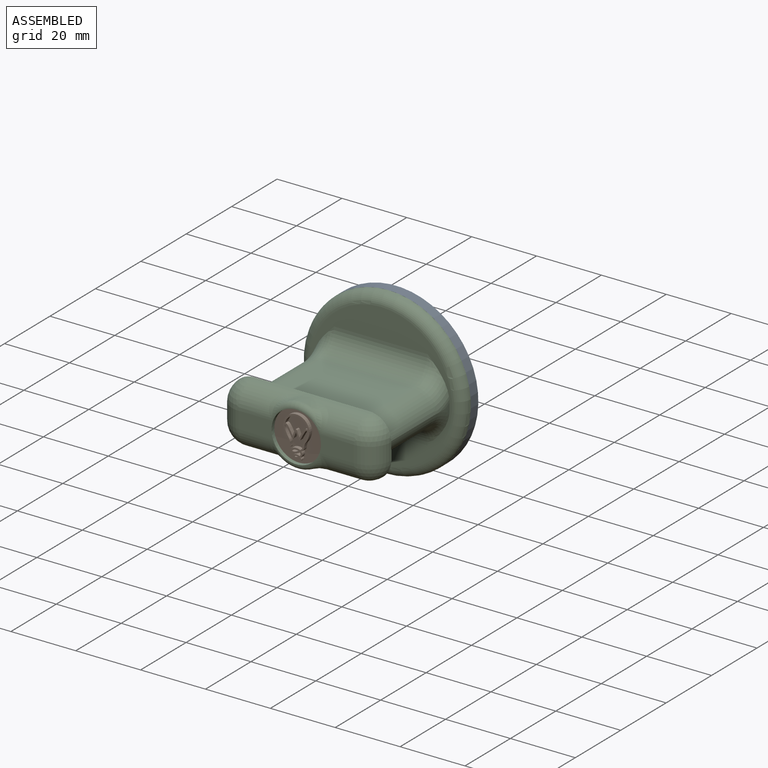
[diagram: assembled view]
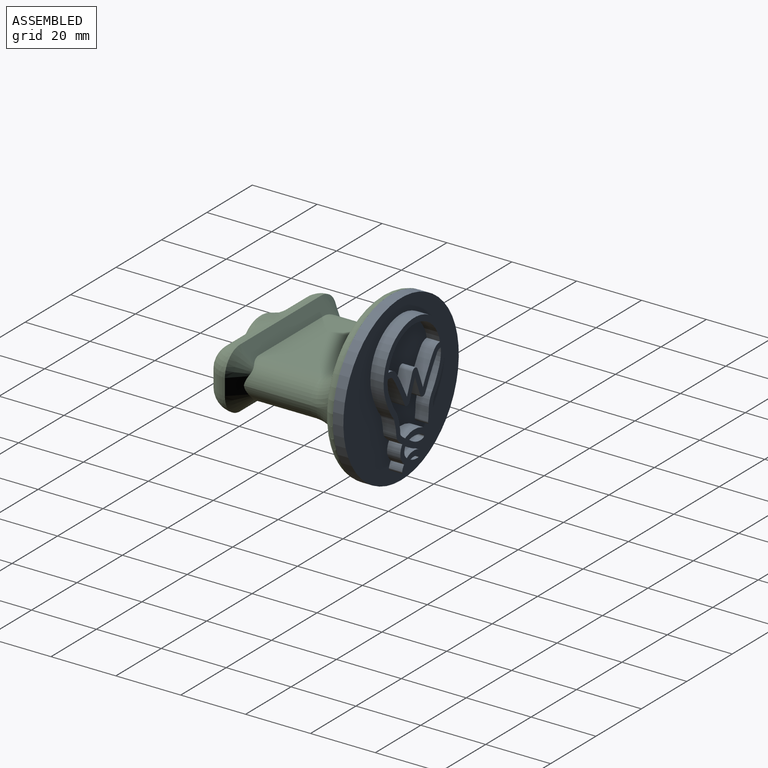
[diagram: assembled view, second angle]
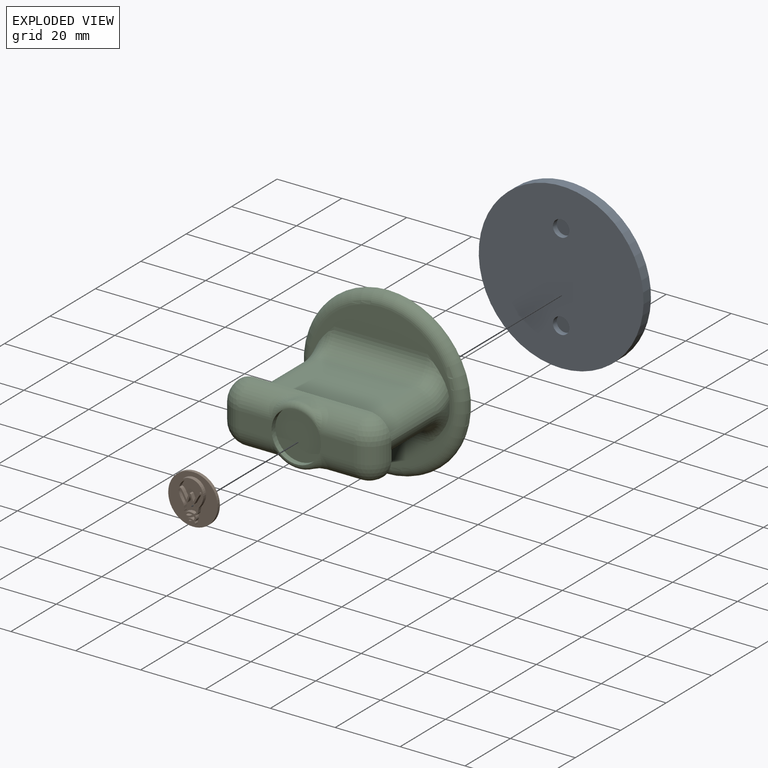
[diagram: exploded view]
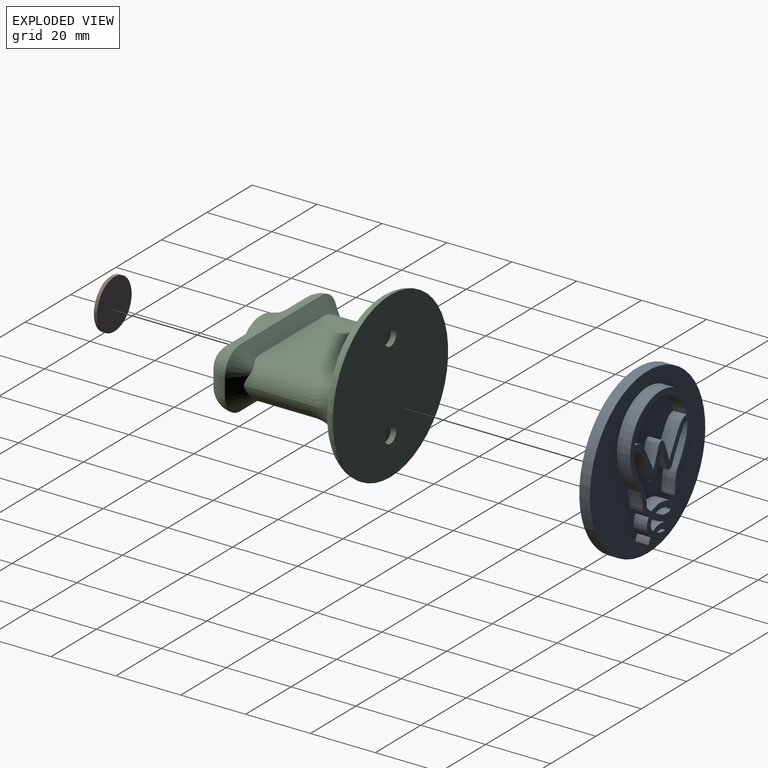
[diagram: exploded view, second angle]
ASSEMBLY  parts=3 mates=3
PART A: 128 faces, bbox 50.8x7.3x50.8 mm
  f0: cylinder r=196.46mm len=5.96mm, axis (0,1,0), area 26.2mm2, adj f1,f116,f117,f118
  f1: cylinder r=1.22mm len=4.08mm, axis (0,1,0), area 12mm2, adj f0,f2,f117,f118
  f2: cylinder r=205.59mm len=5.96mm, axis (0,1,0), area 26.1mm2, adj f1,f3,f117,f118
  f3: cylinder r=60.74mm len=5.03mm, axis (0,1,0), area 23.4mm2, adj f2,f4,f117,f118
  f4: cylinder r=17.63mm len=4.08mm, axis (0,1,0), area 17.1mm2, adj f3,f5,f117,f118
  f5: cylinder r=3.38mm len=4.08mm, axis (0,1,0), area 12mm2, adj f4,f6,f117,f118
  f6: cylinder r=11.6mm len=22.71mm, axis (0,1,0), area 129.3mm2, adj f5,f7,f117,f118
  f7: cylinder r=3.99mm len=4.08mm, axis (0,1,0), area 9.7mm2, adj f6,f8,f117,f118
  f8: cylinder r=3.51mm len=4.08mm, axis (0,1,0), area 7.5mm2, adj f7,f9,f117,f118
  f9: cylinder r=22.64mm len=4.08mm, axis (0,1,0), area 15.6mm2, adj f8,f116,f117,f118
  f10: cylinder r=4.15mm len=4.08mm, axis (0,1,0), area 3.8mm2, adj f11,f113,f117,f121
  f11: cylinder r=19.59mm len=4.08mm, axis (0,1,0), area 3.9mm2, adj f10,f12,f117,f121
  f12: cylinder r=4.32mm len=4.08mm, axis (0,1,0), area 4.9mm2, adj f11,f13,f117,f121
  f13: cylinder r=6.24mm len=4.08mm, axis (0,1,0), area 8.6mm2, adj f12,f14,f117,f121
  f14: cylinder r=3.53mm len=4.08mm, axis (0,1,0), area 7.7mm2, adj f13,f15,f117,f121
  f15: cylinder r=2.2mm len=4.08mm, axis (0,1,0), area 5.5mm2, adj f14,f16,f117,f121
  f16: cylinder r=2.23mm len=4.08mm, axis (0,1,0), area 3.6mm2, adj f15,f17,f117,f121
  f17: cylinder r=1.21mm len=4.08mm, axis (0,1,0), area 4.5mm2, adj f16,f18,f117,f121
  f18: cylinder r=1.99mm len=4.08mm, axis (0,1,0), area 5.9mm2, adj f17,f19,f117,f121
  f19: cylinder r=5.77mm len=4.08mm, axis (0,1,0), area 8.8mm2, adj f18,f20,f117,f121
  f20: cylinder r=5.63mm len=4.08mm, axis (0,1,0), area 6.2mm2, adj f19,f21,f117,f121
  f21: cylinder r=5.17mm len=4.08mm, axis (0,1,0), area 6.7mm2, adj f20,f22,f117,f121
  f22: cylinder r=22.22mm len=4.08mm, axis (0,1,0), area 5.8mm2, adj f21,f23,f117,f121
  f23: cylinder r=0.85mm len=4.08mm, axis (0,1,0), area 8.8mm2, adj f22,f24,f117,f121
  f24: cylinder r=4.37mm len=4.08mm, axis (0,1,0), area 8.2mm2, adj f23,f25,f117,f121
  f25: cylinder r=3.71mm len=4.08mm, axis (0,1,0), area 5.8mm2, adj f24,f26,f117,f121
  f26: cylinder r=3.82mm len=4.08mm, axis (0,1,0), area 4mm2, adj f25,f27,f117,f121
  f27: cylinder r=1.83mm len=4.08mm, axis (0,1,0), area 4mm2, adj f26,f28,f117,f121
  f28: cylinder r=3.59mm len=4.08mm, axis (0,1,0), area 6.4mm2, adj f27,f29,f117,f121
  f29: cylinder r=2.82mm len=4.08mm, axis (0,1,0), area 4.2mm2, adj f28,f30,f117,f121
  f30: cylinder r=1.76mm len=4.08mm, axis (0,1,0), area 2.5mm2, adj f29,f31,f117,f121
  f31: cylinder r=9.08mm len=4.08mm, axis (0,1,0), area 10.6mm2, adj f30,f32,f117,f121
  f32: cylinder r=1.67mm len=4.08mm, axis (0,1,0), area 4mm2, adj f31,f33,f117,f121
  f33: cylinder r=3.78mm len=4.08mm, axis (0,1,0), area 6.6mm2, adj f32,f34,f117,f121
  f34: cylinder r=15.09mm len=4.08mm, axis (0,1,0), area 14.1mm2, adj f33,f35,f117,f121
  f35: cylinder r=3.51mm len=4.08mm, axis (0,1,0), area 9.5mm2, adj f34,f36,f117,f121
  f36: cylinder r=21.47mm len=4.08mm, axis (0,1,0), area 15.5mm2, adj f35,f37,f117,f121
  f37: cylinder r=19.36mm len=4.08mm, axis (0,1,0), area 11.9mm2, adj f36,f38,f117,f121
  f38: cylinder r=13.67mm len=4.08mm, axis (0,1,0), area 12mm2, adj f37,f39,f117,f121
  f39: cylinder r=13.49mm len=26.99mm, axis (0,1,0), area 185mm2, adj f38,f40,f117,f121
  f40: cylinder r=13.8mm len=4.08mm, axis (0,1,0), area 15.3mm2, adj f39,f41,f117,f121
  f41: cylinder r=16.01mm len=4.08mm, axis (0,1,0), area 15.8mm2, adj f40,f42,f117,f121
  f42: cylinder r=31.2mm len=4.08mm, axis (0,1,0), area 8.6mm2, adj f41,f43,f117,f121
  f43: cylinder r=2.15mm len=4.08mm, axis (0,1,0), area 3.4mm2, adj f42,f44,f117,f121
  f44: cylinder r=6.78mm len=4.08mm, axis (0,1,0), area 6.9mm2, adj f43,f45,f117,f121
  f45: cylinder r=4.59mm len=4.08mm, axis (0,1,0), area 8.4mm2, adj f44,f46,f117,f121
  f46: cylinder r=182.43mm len=4.08mm, axis (0,1,0), area 12.1mm2, adj f45,f47,f117,f121
  f47: cylinder r=3.56mm len=4.08mm, axis (0,1,0), area 2.8mm2, adj f46,f48,f117,f121
  f48: cylinder r=0.84mm len=4.08mm, axis (0,1,0), area 10.3mm2, adj f47,f49,f117,f121
  f49: cylinder r=27.62mm len=4.08mm, axis (0,1,0), area 13.5mm2, adj f48,f50,f117,f121
  f50: cylinder r=5.45mm len=4.08mm, axis (0,1,0), area 7.3mm2, adj f49,f51,f117,f121
  f51: cylinder r=5.55mm len=4.08mm, axis (0,1,0), area 9mm2, adj f50,f52,f117,f121
  f52: cylinder r=4.51mm len=4.08mm, axis (0,1,0), area 4.5mm2, adj f51,f53,f117,f121
  f53: cylinder r=29.47mm len=5.43mm, axis (0,1,0), area 25mm2, adj f52,f54,f117,f121
  f54: cylinder r=10.37mm len=4.99mm, axis (0,1,0), area 20.8mm2, adj f53,f55,f117,f121
  f55: cylinder r=1.45mm len=4.08mm, axis (0,1,0), area 4.7mm2, adj f54,f56,f117,f121
  f56: cylinder r=2.53mm len=4.08mm, axis (0,1,0), area 3.6mm2, adj f55,f57,f117,f121
  f57: cylinder r=68.64mm len=8.42mm, axis (0,1,0), area 39.6mm2, adj f56,f58,f117,f121
  f58: cylinder r=5.14mm len=4.08mm, axis (0,1,0), area 2.9mm2, adj f57,f59,f117,f121
  f59: cylinder r=1.23mm len=4.08mm, axis (0,1,0), area 10.8mm2, adj f58,f60,f117,f121
  f60: cylinder r=654.76mm len=6mm, axis (0,1,0), area 26.3mm2, adj f59,f61,f117,f121
  f61: cylinder r=1255.05mm len=5.98mm, axis (0,1,0), area 26.3mm2, adj f60,f62,f117,f121
  f62: cylinder r=1.17mm len=4.08mm, axis (0,1,0), area 11mm2, adj f61,f63,f117,f121
  f63: cylinder r=61.3mm len=4.08mm, axis (0,1,0), area 6.7mm2, adj f62,f64,f117,f121
  f64: cylinder r=93.17mm len=5.57mm, axis (0,1,0), area 25.9mm2, adj f63,f65,f117,f121
  f65: cylinder r=25.24mm len=4.08mm, axis (0,1,0), area 11.1mm2, adj f64,f66,f117,f121
  f66: cylinder r=1.51mm len=4.08mm, axis (0,1,0), area 5.6mm2, adj f65,f67,f117,f121
  f67: cylinder r=5.9mm len=4.08mm, axis (0,1,0), area 4mm2, adj f66,f68,f117,f121
  f68: cylinder r=6.85mm len=4.08mm, axis (0,1,0), area 8.9mm2, adj f67,f69,f117,f121
  f69: cylinder r=8.07mm len=4.08mm, axis (0,1,0), area 10.3mm2, adj f68,f70,f117,f121
  f70: cylinder r=16.63mm len=4.08mm, axis (0,1,0), area 13mm2, adj f69,f71,f117,f121
  f71: cylinder r=18.72mm len=4.08mm, axis (0,1,0), area 15mm2, adj f70,f72,f117,f121
  f72: cylinder r=4.03mm len=4.08mm, axis (0,1,0), area 6.9mm2, adj f71,f73,f117,f121
  f73: cylinder r=15.83mm len=4.08mm, axis (0,1,0), area 12.3mm2, adj f72,f74,f117,f121
  f74: cylinder r=8.83mm len=4.08mm, axis (0,1,0), area 9.1mm2, adj f73,f75,f117,f121
  f75: cylinder r=1.27mm len=4.08mm, axis (0,1,0), area 3.3mm2, adj f74,f76,f117,f121
  f76: cylinder r=11.67mm len=4.08mm, axis (0,1,0), area 9.1mm2, adj f75,f77,f117,f121
  f77: cylinder r=3.49mm len=4.08mm, axis (0,1,0), area 5.7mm2, adj f76,f78,f117,f121
  f78: cylinder r=5.88mm len=4.08mm, axis (0,1,0), area 12.9mm2, adj f77,f79,f117,f121
  f79: cylinder r=5.38mm len=4.08mm, axis (0,1,0), area 9.2mm2, adj f78,f80,f117,f121
  f80: cylinder r=5.29mm len=4.08mm, axis (0,1,0), area 10.1mm2, adj f79,f81,f117,f121
  f81: cylinder r=2.38mm len=4.08mm, axis (0,1,0), area 6.9mm2, adj f80,f82,f117,f121
  f82: cylinder r=2.49mm len=4.08mm, axis (0,1,0), area 5mm2, adj f81,f83,f117,f121
  f83: cylinder r=1.51mm len=4.08mm, axis (0,1,0), area 5mm2, adj f82,f84,f117,f121
  f84: cylinder r=2.66mm len=4.08mm, axis (0,1,0), area 7.1mm2, adj f83,f85,f117,f121
  f85: cylinder r=10.03mm len=4.08mm, axis (0,1,0), area 7.6mm2, adj f84,f86,f117,f121
  f86: cylinder r=2.69mm len=4.08mm, axis (0,1,0), area 3.2mm2, adj f85,f87,f117,f121
  f87: cylinder r=5.31mm len=4.08mm, axis (0,1,0), area 4.4mm2, adj f86,f88,f117,f121
  f88: cylinder r=3.86mm len=4.08mm, axis (0,1,0), area 3.7mm2, adj f87,f89,f117,f121
  f89: cylinder r=12.93mm len=4.08mm, axis (0,1,0), area 7.2mm2, adj f88,f90,f117,f121
  f90: cylinder r=8.5mm len=4.08mm, axis (0,1,0), area 7.3mm2, adj f89,f91,f117,f121
  f91: cylinder r=1.95mm len=4.08mm, axis (0,1,0), area 3.5mm2, adj f90,f92,f117,f121
  f92: cylinder r=2.35mm len=4.08mm, axis (0,1,0), area 2.8mm2, adj f91,f93,f117,f121
  f93: cylinder r=2.72mm len=4.08mm, axis (0,1,0), area 3.2mm2, adj f92,f113,f117,f121
  f94: cylinder r=2.87mm len=4.08mm, axis (0,1,0), area 4.7mm2, adj f95,f114,f117,f120
  f95: cylinder r=13.21mm len=4.08mm, axis (0,1,0), area 8mm2, adj f94,f96,f117,f120
  f96: cylinder r=6.91mm len=4.08mm, axis (0,1,0), area 5.6mm2, adj f95,f97,f117,f120
  f97: cylinder r=4.27mm len=4.08mm, axis (0,1,0), area 6.3mm2, adj f96,f98,f117,f120
  f98: cylinder r=6.13mm len=4.08mm, axis (0,1,0), area 4.1mm2, adj f97,f99,f117,f120
  f99: cylinder r=1.64mm len=4.08mm, axis (0,1,0), area 2.6mm2, adj f98,f100,f117,f120
  f100: cylinder r=0.79mm len=4.08mm, axis (0,1,0), area 2mm2, adj f99,f101,f117,f120
  f101: cylinder r=0.57mm len=4.08mm, axis (0,1,0), area 1.5mm2, adj f100,f102,f117,f120
  f102: cylinder r=0.97mm len=4.08mm, axis (0,1,0), area 1.5mm2, adj f101,f103,f117,f120
  f103: cylinder r=2.96mm len=4.08mm, axis (0,1,0), area 3mm2, adj f102,f104,f117,f120
  f104: cylinder r=3.59mm len=4.08mm, axis (0,1,0), area 4.7mm2, adj f103,f105,f117,f120
  f105: cylinder r=6.83mm len=4.08mm, axis (0,1,0), area 6.3mm2, adj f104,f114,f117,f120
  f106: cylinder r=3.94mm len=4.08mm, axis (0,1,0), area 5.7mm2, adj f107,f115,f117,f119
  f107: cylinder r=2.92mm len=4.08mm, axis (0,1,0), area 4.7mm2, adj f106,f108,f117,f119
  f108: cylinder r=5.97mm len=4.08mm, axis (0,1,0), area 4.2mm2, adj f107,f109,f117,f119
  f109: cylinder r=0.08mm len=4.08mm, axis (0,1,0), area 0.6mm2, adj f108,f110,f117,f119
  f110: cylinder r=2.26mm len=4.08mm, axis (0,1,0), area 4.6mm2, adj f109,f111,f117,f119
  f111: cylinder r=3.02mm len=4.08mm, axis (0,1,0), area 4.4mm2, adj f110,f112,f117,f119
  f112: cylinder r=4.5mm len=4.08mm, axis (0,1,0), area 3.3mm2, adj f111,f115,f117,f119
  f113: cylinder r=1.61mm len=4.08mm, axis (0,1,0), area 3.4mm2, adj f10,f93,f117,f121
  f114: cylinder r=9.52mm len=4.08mm, axis (0,1,0), area 8mm2, adj f94,f105,f117,f120
  f115: cylinder r=4.29mm len=4.08mm, axis (0,1,0), area 3.1mm2, adj f106,f112,f117,f119
  f116: cylinder r=964.17mm len=4.79mm, axis (0,1,0), area 22.1mm2, adj f0,f9,f117,f118
  f117: plane 41.79x26.99mm, normal (0,-1,0), area 293.1mm2, adj f0,f1,f2,f3,f4,f5,f6,f7
  f118: plane 22.71x19.03mm, normal (0,-1,0), area 250.7mm2, adj f0,f1,f2,f3,f4,f5,f6,f7
  f119: plane 3.52x0.97mm, normal (0,-1,0), area 2.2mm2, adj f106,f107,f108,f109,f110,f111,f112,f115
  f120: plane 6.51x2.24mm, normal (0,-1,0), area 9.2mm2, adj f94,f95,f96,f97,f98,f99,f100,f101
  f121: plane 50.81x50.81mm, normal (0,-1,0), area 1472.6mm2, adj f10,f11,f12,f13,f14,f15,f16,f17
  f122: cylinder r=25.41mm len=50.81mm, axis (0,-1,0), area 521.2mm2, adj f121,f123
  f123: plane 50.81x50.81mm, normal (0,1,0), area 1987.2mm2, adj f122,f124,f126
  f124: cylinder r=2.54mm len=5.08mm, axis (0,1,0), area 27mm2, adj f123,f125
  f125: plane 5.08x5.08mm, normal (0,1,0), area 20.3mm2, adj f124
  f126: cylinder r=2.54mm len=5.08mm, axis (0,1,0), area 27mm2, adj f123,f127
  f127: plane 5.08x5.08mm, normal (0,1,0), area 20.3mm2, adj f126
PART B: 124 faces, bbox 15.2x2.2x15.2 mm
  f0: cylinder r=58.94mm len=1.79mm, axis (0,1,0), area 2.4mm2, adj f1,f116,f117,f118
  f1: cylinder r=0.37mm len=1.22mm, axis (0,1,0), area 1.1mm2, adj f0,f2,f117,f118
  f2: cylinder r=61.68mm len=1.79mm, axis (0,1,0), area 2.4mm2, adj f1,f3,f117,f118
  f3: cylinder r=18.22mm len=1.51mm, axis (0,1,0), area 2.1mm2, adj f2,f4,f117,f118
  f4: cylinder r=5.29mm len=1.22mm, axis (0,1,0), area 1.5mm2, adj f3,f5,f117,f118
  f5: cylinder r=1.01mm len=1.22mm, axis (0,1,0), area 1.1mm2, adj f4,f6,f117,f118
  f6: cylinder r=3.48mm len=6.81mm, axis (0,1,0), area 11.6mm2, adj f5,f7,f117,f118
  f7: cylinder r=1.2mm len=1.22mm, axis (0,1,0), area 0.9mm2, adj f6,f8,f117,f118
  f8: cylinder r=1.05mm len=1.22mm, axis (0,1,0), area 0.7mm2, adj f7,f9,f117,f118
  f9: cylinder r=6.79mm len=1.22mm, axis (0,1,0), area 1.4mm2, adj f8,f116,f117,f118
  f10: cylinder r=1.24mm len=1.22mm, axis (0,1,0), area 0.3mm2, adj f11,f113,f117,f121
  f11: cylinder r=5.88mm len=1.22mm, axis (0,1,0), area 0.4mm2, adj f10,f12,f117,f121
  f12: cylinder r=1.3mm len=1.22mm, axis (0,1,0), area 0.4mm2, adj f11,f13,f117,f121
  f13: cylinder r=1.87mm len=1.22mm, axis (0,1,0), area 0.8mm2, adj f12,f14,f117,f121
  f14: cylinder r=1.06mm len=1.22mm, axis (0,1,0), area 0.7mm2, adj f13,f15,f117,f121
  f15: cylinder r=0.66mm len=1.22mm, axis (0,1,0), area 0.5mm2, adj f14,f16,f117,f121
  f16: cylinder r=0.67mm len=1.22mm, axis (0,1,0), area 0.3mm2, adj f15,f17,f117,f121
  f17: cylinder r=0.36mm len=1.22mm, axis (0,1,0), area 0.4mm2, adj f16,f18,f117,f121
  f18: cylinder r=0.6mm len=1.22mm, axis (0,1,0), area 0.5mm2, adj f17,f19,f117,f121
  f19: cylinder r=1.73mm len=1.22mm, axis (0,1,0), area 0.8mm2, adj f18,f20,f117,f121
  f20: cylinder r=1.69mm len=1.22mm, axis (0,1,0), area 0.6mm2, adj f19,f21,f117,f121
  f21: cylinder r=1.55mm len=1.22mm, axis (0,1,0), area 0.6mm2, adj f20,f22,f117,f121
  f22: cylinder r=6.67mm len=1.22mm, axis (0,1,0), area 0.5mm2, adj f21,f23,f117,f121
  f23: cylinder r=0.26mm len=1.22mm, axis (0,1,0), area 0.8mm2, adj f22,f24,f117,f121
  f24: cylinder r=1.31mm len=1.22mm, axis (0,1,0), area 0.7mm2, adj f23,f25,f117,f121
  f25: cylinder r=1.11mm len=1.22mm, axis (0,1,0), area 0.5mm2, adj f24,f26,f117,f121
  f26: cylinder r=1.15mm len=1.22mm, axis (0,1,0), area 0.4mm2, adj f25,f27,f117,f121
  f27: cylinder r=0.55mm len=1.22mm, axis (0,1,0), area 0.4mm2, adj f26,f28,f117,f121
  f28: cylinder r=1.08mm len=1.22mm, axis (0,1,0), area 0.6mm2, adj f27,f29,f117,f121
  f29: cylinder r=0.85mm len=1.22mm, axis (0,1,0), area 0.4mm2, adj f28,f30,f117,f121
  f30: cylinder r=0.53mm len=1.22mm, axis (0,1,0), area 0.2mm2, adj f29,f31,f117,f121
  f31: cylinder r=2.72mm len=1.22mm, axis (0,1,0), area 1mm2, adj f30,f32,f117,f121
  f32: cylinder r=0.5mm len=1.22mm, axis (0,1,0), area 0.4mm2, adj f31,f33,f117,f121
  f33: cylinder r=1.14mm len=1.22mm, axis (0,1,0), area 0.6mm2, adj f32,f34,f117,f121
  f34: cylinder r=4.53mm len=1.22mm, axis (0,1,0), area 1.3mm2, adj f33,f35,f117,f121
  f35: cylinder r=1.05mm len=1.22mm, axis (0,1,0), area 0.9mm2, adj f34,f36,f117,f121
  f36: cylinder r=6.44mm len=1.22mm, axis (0,1,0), area 1.4mm2, adj f35,f37,f117,f121
  f37: cylinder r=5.81mm len=1.22mm, axis (0,1,0), area 1.1mm2, adj f36,f38,f117,f121
  f38: cylinder r=4.1mm len=1.22mm, axis (0,1,0), area 1.1mm2, adj f37,f39,f117,f121
  f39: cylinder r=4.05mm len=8.1mm, axis (0,1,0), area 16.7mm2, adj f38,f40,f117,f121
  f40: cylinder r=4.14mm len=1.22mm, axis (0,1,0), area 1.4mm2, adj f39,f41,f117,f121
  f41: cylinder r=4.8mm len=1.22mm, axis (0,1,0), area 1.4mm2, adj f40,f42,f117,f121
  f42: cylinder r=9.36mm len=1.22mm, axis (0,1,0), area 0.8mm2, adj f41,f43,f117,f121
  f43: cylinder r=0.65mm len=1.22mm, axis (0,1,0), area 0.3mm2, adj f42,f44,f117,f121
  f44: cylinder r=2.03mm len=1.22mm, axis (0,1,0), area 0.6mm2, adj f43,f45,f117,f121
  f45: cylinder r=1.38mm len=1.22mm, axis (0,1,0), area 0.8mm2, adj f44,f46,f117,f121
  f46: cylinder r=54.73mm len=1.22mm, axis (0,1,0), area 1.1mm2, adj f45,f47,f117,f121
  f47: cylinder r=1.07mm len=1.22mm, axis (0,1,0), area 0.2mm2, adj f46,f48,f117,f121
  f48: cylinder r=0.25mm len=1.22mm, axis (0,1,0), area 0.9mm2, adj f47,f49,f117,f121
  f49: cylinder r=8.29mm len=1.22mm, axis (0,1,0), area 1.2mm2, adj f48,f50,f117,f121
  f50: cylinder r=1.64mm len=1.22mm, axis (0,1,0), area 0.7mm2, adj f49,f51,f117,f121
  f51: cylinder r=1.66mm len=1.22mm, axis (0,1,0), area 0.8mm2, adj f50,f52,f117,f121
  f52: cylinder r=1.35mm len=1.22mm, axis (0,1,0), area 0.4mm2, adj f51,f53,f117,f121
  f53: cylinder r=8.84mm len=1.63mm, axis (0,1,0), area 2.3mm2, adj f52,f54,f117,f121
  f54: cylinder r=3.11mm len=1.5mm, axis (0,1,0), area 1.9mm2, adj f53,f55,f117,f121
  f55: cylinder r=0.43mm len=1.22mm, axis (0,1,0), area 0.4mm2, adj f54,f56,f117,f121
  f56: cylinder r=0.76mm len=1.22mm, axis (0,1,0), area 0.3mm2, adj f55,f57,f117,f121
  f57: cylinder r=20.59mm len=2.52mm, axis (0,1,0), area 3.6mm2, adj f56,f58,f117,f121
  f58: cylinder r=1.54mm len=1.22mm, axis (0,1,0), area 0.3mm2, adj f57,f59,f117,f121
  f59: cylinder r=0.37mm len=1.22mm, axis (0,1,0), area 1mm2, adj f58,f60,f117,f121
  f60: cylinder r=196.43mm len=1.8mm, axis (0,1,0), area 2.4mm2, adj f59,f61,f117,f121
  f61: cylinder r=376.52mm len=1.79mm, axis (0,1,0), area 2.4mm2, adj f60,f62,f117,f121
  f62: cylinder r=0.35mm len=1.22mm, axis (0,1,0), area 1mm2, adj f61,f63,f117,f121
  f63: cylinder r=18.39mm len=1.22mm, axis (0,1,0), area 0.6mm2, adj f62,f64,f117,f121
  f64: cylinder r=27.95mm len=1.67mm, axis (0,1,0), area 2.3mm2, adj f63,f65,f117,f121
  f65: cylinder r=7.57mm len=1.22mm, axis (0,1,0), area 1mm2, adj f64,f66,f117,f121
  f66: cylinder r=0.45mm len=1.22mm, axis (0,1,0), area 0.5mm2, adj f65,f67,f117,f121
  f67: cylinder r=1.77mm len=1.22mm, axis (0,1,0), area 0.4mm2, adj f66,f68,f117,f121
  f68: cylinder r=2.06mm len=1.22mm, axis (0,1,0), area 0.8mm2, adj f67,f69,f117,f121
  f69: cylinder r=2.42mm len=1.22mm, axis (0,1,0), area 0.9mm2, adj f68,f70,f117,f121
  f70: cylinder r=4.99mm len=1.22mm, axis (0,1,0), area 1.2mm2, adj f69,f71,f117,f121
  f71: cylinder r=5.62mm len=1.22mm, axis (0,1,0), area 1.4mm2, adj f70,f72,f117,f121
  f72: cylinder r=1.21mm len=1.22mm, axis (0,1,0), area 0.6mm2, adj f71,f73,f117,f121
  f73: cylinder r=4.75mm len=1.22mm, axis (0,1,0), area 1.1mm2, adj f72,f74,f117,f121
  f74: cylinder r=2.65mm len=1.22mm, axis (0,1,0), area 0.8mm2, adj f73,f75,f117,f121
  f75: cylinder r=0.38mm len=1.22mm, axis (0,1,0), area 0.3mm2, adj f74,f76,f117,f121
  f76: cylinder r=3.5mm len=1.22mm, axis (0,1,0), area 0.8mm2, adj f75,f77,f117,f121
  f77: cylinder r=1.05mm len=1.22mm, axis (0,1,0), area 0.5mm2, adj f76,f78,f117,f121
  f78: cylinder r=1.76mm len=1.22mm, axis (0,1,0), area 1.2mm2, adj f77,f79,f117,f121
  f79: cylinder r=1.61mm len=1.22mm, axis (0,1,0), area 0.8mm2, adj f78,f80,f117,f121
  f80: cylinder r=1.59mm len=1.22mm, axis (0,1,0), area 0.9mm2, adj f79,f81,f117,f121
  f81: cylinder r=0.71mm len=1.22mm, axis (0,1,0), area 0.6mm2, adj f80,f82,f117,f121
  f82: cylinder r=0.75mm len=1.22mm, axis (0,1,0), area 0.4mm2, adj f81,f83,f117,f121
  f83: cylinder r=0.45mm len=1.22mm, axis (0,1,0), area 0.4mm2, adj f82,f84,f117,f121
  f84: cylinder r=0.8mm len=1.22mm, axis (0,1,0), area 0.6mm2, adj f83,f85,f117,f121
  f85: cylinder r=3.01mm len=1.22mm, axis (0,1,0), area 0.7mm2, adj f84,f86,f117,f121
  f86: cylinder r=0.81mm len=1.22mm, axis (0,1,0), area 0.3mm2, adj f85,f87,f117,f121
  f87: cylinder r=1.59mm len=1.22mm, axis (0,1,0), area 0.4mm2, adj f86,f88,f117,f121
  f88: cylinder r=1.16mm len=1.22mm, axis (0,1,0), area 0.3mm2, adj f87,f89,f117,f121
  f89: cylinder r=3.88mm len=1.22mm, axis (0,1,0), area 0.6mm2, adj f88,f90,f117,f121
  f90: cylinder r=2.55mm len=1.22mm, axis (0,1,0), area 0.7mm2, adj f89,f91,f117,f121
  f91: cylinder r=0.59mm len=1.22mm, axis (0,1,0), area 0.3mm2, adj f90,f92,f117,f121
  f92: cylinder r=0.71mm len=1.22mm, axis (0,1,0), area 0.3mm2, adj f91,f93,f117,f121
  f93: cylinder r=0.82mm len=1.22mm, axis (0,1,0), area 0.3mm2, adj f92,f113,f117,f121
  f94: cylinder r=0.86mm len=1.22mm, axis (0,1,0), area 0.4mm2, adj f95,f114,f117,f120
  f95: cylinder r=3.96mm len=1.22mm, axis (0,1,0), area 0.7mm2, adj f94,f96,f117,f120
  f96: cylinder r=2.07mm len=1.22mm, axis (0,1,0), area 0.5mm2, adj f95,f97,f117,f120
  f97: cylinder r=1.28mm len=1.22mm, axis (0,1,0), area 0.6mm2, adj f96,f98,f117,f120
  f98: cylinder r=1.84mm len=1.22mm, axis (0,1,0), area 0.4mm2, adj f97,f99,f117,f120
  f99: cylinder r=0.49mm len=1.22mm, axis (0,1,0), area 0.2mm2, adj f98,f100,f117,f120
  f100: cylinder r=0.24mm len=1.22mm, axis (0,1,0), area 0.2mm2, adj f99,f101,f117,f120
  f101: cylinder r=0.17mm len=1.22mm, axis (0,1,0), area 0.1mm2, adj f100,f102,f117,f120
  f102: cylinder r=0.29mm len=1.22mm, axis (0,1,0), area 0.1mm2, adj f101,f103,f117,f120
  f103: cylinder r=0.89mm len=1.22mm, axis (0,1,0), area 0.3mm2, adj f102,f104,f117,f120
  f104: cylinder r=1.08mm len=1.22mm, axis (0,1,0), area 0.4mm2, adj f103,f105,f117,f120
  f105: cylinder r=2.05mm len=1.22mm, axis (0,1,0), area 0.6mm2, adj f104,f114,f117,f120
  f106: cylinder r=1.18mm len=1.22mm, axis (0,1,0), area 0.5mm2, adj f107,f115,f117,f119
  f107: cylinder r=0.88mm len=1.22mm, axis (0,1,0), area 0.4mm2, adj f106,f108,f117,f119
  f108: cylinder r=1.79mm len=1.22mm, axis (0,1,0), area 0.4mm2, adj f107,f109,f117,f119
  f109: cylinder r=0.02mm len=1.22mm, axis (0,1,0), area 0.1mm2, adj f108,f110,f117,f119
  f110: cylinder r=0.68mm len=1.22mm, axis (0,1,0), area 0.4mm2, adj f109,f111,f117,f119
  f111: cylinder r=0.91mm len=1.22mm, axis (0,1,0), area 0.4mm2, adj f110,f112,f117,f119
  f112: cylinder r=1.35mm len=1.22mm, axis (0,1,0), area 0.3mm2, adj f111,f115,f117,f119
  f113: cylinder r=0.48mm len=1.22mm, axis (0,1,0), area 0.3mm2, adj f10,f93,f117,f121
  f114: cylinder r=2.86mm len=1.22mm, axis (0,1,0), area 0.7mm2, adj f94,f105,f117,f120
  f115: cylinder r=1.29mm len=1.22mm, axis (0,1,0), area 0.3mm2, adj f106,f112,f117,f119
  f116: cylinder r=289.25mm len=1.44mm, axis (0,1,0), area 2mm2, adj f0,f9,f117,f118
  f117: plane 12.54x8.1mm, normal (0,-1,0), area 26.4mm2, adj f0,f1,f2,f3,f4,f5,f6,f7
  f118: plane 6.81x5.71mm, normal (0,-1,0), area 22.6mm2, adj f0,f1,f2,f3,f4,f5,f6,f7
  f119: plane 1.06x0.29mm, normal (0,-1,0), area 0.2mm2, adj f106,f107,f108,f109,f110,f111,f112,f115
  f120: plane 1.95x0.67mm, normal (0,-1,0), area 0.8mm2, adj f94,f95,f96,f97,f98,f99,f100,f101
  f121: plane 15.24x15.24mm, normal (0,-1,0), area 132.5mm2, adj f10,f11,f12,f13,f14,f15,f16,f17
  f122: cylinder r=7.62mm len=15.24mm, axis (0,-1,0), area 46.9mm2, adj f121,f123
  f123: plane 15.24x15.24mm, normal (0,1,0), area 182.5mm2, adj f122
PART C: 56 faces, bbox 55.4x50.8x55.4 mm
  f0: plane 10.6x5.08mm, normal (0,-1,0), area 52.3mm2, adj f1,f23,f27,f41
  f1: cylinder r=6.77mm len=17.78mm, axis (-1,0,0), area 117mm2, adj f0,f21,f35,f36,f48
  f2: cylinder r=6.77mm len=17.78mm, axis (1,0,0), area 117mm2, adj f9,f28,f33,f34,f55
  f3: plane 44.03x44.03mm, normal (0,-1,0), area 556.9mm2, adj f5,f7,f10,f11,f13,f15,f18,f19
  f4: plane 50.8x50.8mm, normal (0,1,0), area 1986.3mm2, adj f20,f44,f46
  f5: plane 2.06x1.94mm, normal (1,0,0), area 1.8mm2, adj f3,f13,f15
  f6: plane 28.79x20.32mm, normal (0,0,1), area 584.9mm2, adj f10,f14,f17,f55
  f7: plane 2.06x1.94mm, normal (-1,0,0), area 1.8mm2, adj f3,f18,f19
  f8: plane 28.79x20.32mm, normal (0,0,-1), area 584.9mm2, adj f11,f12,f16,f48
  f9: plane 10.6x5.08mm, normal (0,-1,0), area 52.3mm2, adj f2,f22,f26,f42
  f10: cylinder r=6.77mm len=28.79mm, axis (-1,0,0), area 306.3mm2, adj f3,f6,f15,f19
  f11: cylinder r=6.77mm len=28.79mm, axis (1,0,0), area 306.3mm2, adj f3,f8,f13,f18
  f12: cylinder r=6.77mm len=20.32mm, axis (0,1,0), area 191.7mm2, adj f8,f13,f14,f48,f49,f51
  f13: torus R=13.55mm, axis (1,0,0), area 84.2mm2, adj f3,f5,f11,f12,f15
  f14: cylinder r=6.77mm len=20.32mm, axis (0,-1,0), area 191.7mm2, adj f6,f12,f15,f51,f53,f55
  f15: torus R=13.55mm, axis (1,0,0), area 84.2mm2, adj f3,f5,f10,f13,f14
  f16: cylinder r=6.77mm len=20.32mm, axis (0,-1,0), area 191.7mm2, adj f8,f17,f18,f48,f50,f52
  f17: cylinder r=6.77mm len=20.32mm, axis (0,1,0), area 191.7mm2, adj f6,f16,f19,f52,f54,f55
  f18: torus R=13.55mm, axis (1,0,0), area 84.2mm2, adj f3,f7,f11,f16,f19
  f19: torus R=13.55mm, axis (1,0,0), area 84.2mm2, adj f3,f7,f10,f17,f18
  f20: torus R=22.01mm, axis (0,-1,0), area 807.9mm2, adj f3,f4
  f21: sphere r=6.77mm, area 72.1mm2, adj f1,f23,f50
  f22: cylinder r=6.77mm len=17.78mm, axis (-1,0,0), area 117mm2, adj f9,f24,f37,f38,f48
  f23: cylinder r=6.77mm len=6.77mm, axis (0,0,1), area 54mm2, adj f0,f21,f25,f52
  f24: sphere r=6.77mm, area 72.1mm2, adj f22,f26,f49
  f25: sphere r=6.77mm, area 72.1mm2, adj f23,f27,f54
  f26: cylinder r=6.77mm len=6.77mm, axis (0,0,-1), area 54mm2, adj f9,f24,f28,f51
  f27: cylinder r=6.77mm len=17.78mm, axis (1,0,0), area 117mm2, adj f0,f25,f39,f40,f55
  f28: sphere r=6.77mm, area 72.1mm2, adj f2,f26,f53
  f29: cylinder r=9.31mm len=6.43mm, axis (0,-1,0), area 16.7mm2, adj f32,f33,f39
  f30: cylinder r=9.31mm len=6.43mm, axis (0,-1,0), area 16.7mm2, adj f31,f35,f37
  f31: torus R=7.62mm, axis (0,-1,0), area 33.3mm2, adj f30,f36,f38,f41
  f32: torus R=7.62mm, axis (0,-1,0), area 33.3mm2, adj f29,f34,f40,f41
  f33: bspline ~7.17x6.55mm, area 10.1mm2, adj f2,f29,f34
  f34: bspline ~6.47x6.47mm, area 21.5mm2, adj f2,f32,f33
  f35: bspline ~7.17x6.55mm, area 10.1mm2, adj f1,f30,f36
  f36: bspline ~6.28x5.65mm, area 21.5mm2, adj f1,f31,f35
  f37: bspline ~7.17x6.55mm, area 10.1mm2, adj f22,f30,f38
  f38: bspline ~6.47x6.47mm, area 21.5mm2, adj f22,f31,f37
  f39: bspline ~7.17x6.55mm, area 10.1mm2, adj f27,f29,f40
  f40: bspline ~6.47x6.47mm, area 21.5mm2, adj f27,f32,f39
  f41: cylinder r=7.62mm len=15.24mm, axis (0,-1,0), area 72.3mm2, adj f0,f31,f32,f42,f43
  f42: extruded ~5.08x1.69mm, area 8.8mm2, adj f9,f41,f43
  f43: plane 15.24x15.24mm, normal (0,-1,0), area 182.4mm2, adj f41,f42
  f44: cylinder r=2.54mm len=5.08mm, axis (0,1,0), area 27mm2, adj f4,f45
  f45: plane 5.08x5.08mm, normal (0,1,0), area 20.3mm2, adj f44
  f46: cylinder r=2.54mm len=5.08mm, axis (0,1,0), area 27mm2, adj f4,f47
  f47: plane 5.08x5.08mm, normal (0,1,0), area 20.3mm2, adj f46
  f48: plane 36.01x4.74mm, normal (0,0.71,-0.71), area 173.1mm2, adj f1,f8,f12,f16,f22,f49,f50
  f49: cone r=1.69mm half-angle=45deg, axis (0,-1,0), area 45.8mm2, adj f12,f24,f48,f51
  f50: cone r=1.69mm half-angle=45deg, axis (0,-1,0), area 45.8mm2, adj f16,f21,f48,f52
  f51: plane 5.33x4.55mm, normal (0.71,0.71,0), area 27.1mm2, adj f12,f14,f26,f49,f53
  f52: plane 5.33x4.55mm, normal (-0.71,0.71,0), area 27.1mm2, adj f16,f17,f23,f50,f54
  f53: cone r=1.69mm half-angle=45deg, axis (0,-1,0), area 45.8mm2, adj f14,f28,f51,f55
  f54: cone r=1.69mm half-angle=45deg, axis (0,-1,0), area 45.8mm2, adj f17,f25,f52,f55
  f55: plane 36.01x4.74mm, normal (0,0.71,0.71), area 173.1mm2, adj f2,f6,f14,f17,f27,f53,f54
PLACE A rot(axis=(0,0,1),180deg) t=(-29.24,34.46,9.83)mm
PLACE B t=(-17.65,-7.17,6.84)mm
PLACE C t=(5.21,30.29,9.71)mm
MATE planar B.f117 <-> C.f9  axis (0,-1,0) through (5.24,-10.35,9.86)mm
MATE slider B.f122 <-> C.f29  axis (0,-1,0) through (5.21,-8.63,9.71)mm
MATE planar A.f122 <-> C.f20  axis (0,-1,0) through (5.21,30.29,9.71)mm
